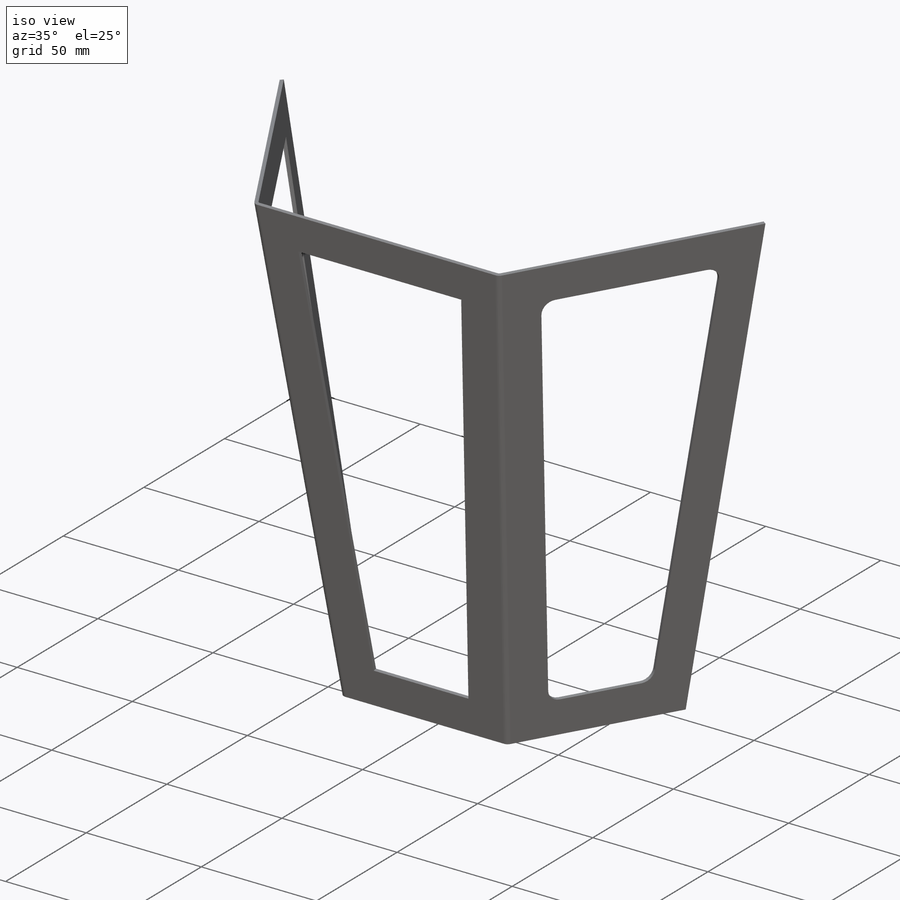
[diagram: iso view]
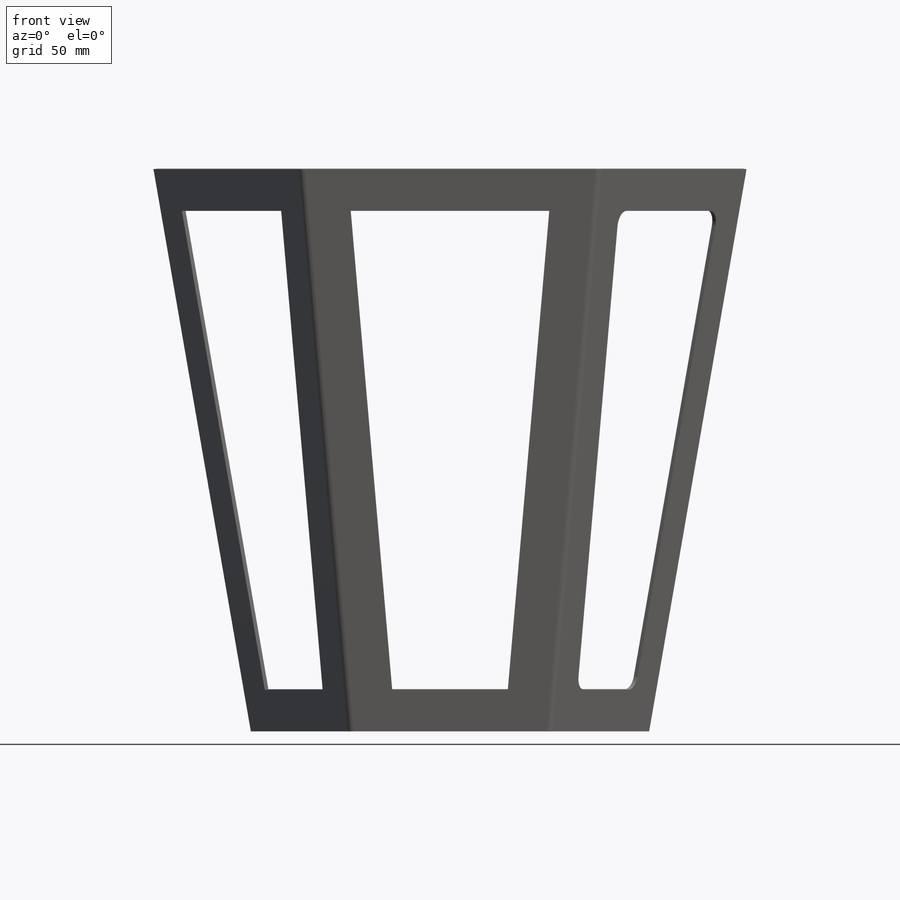
[diagram: front view]
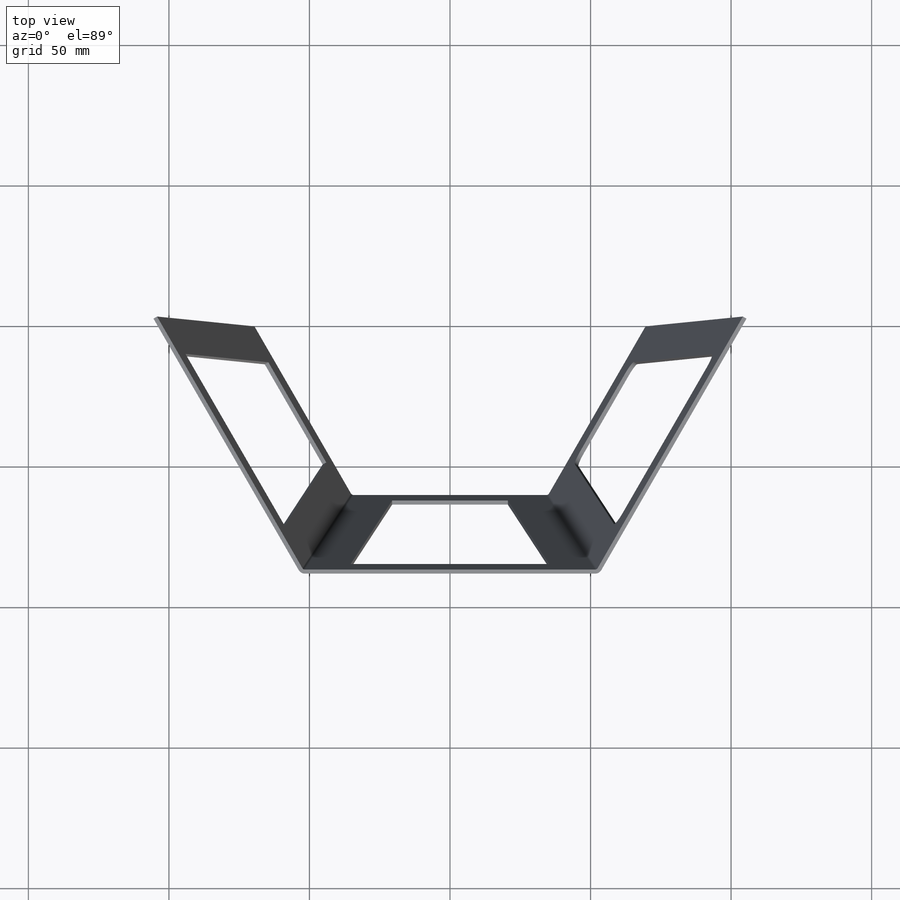
[diagram: top view]
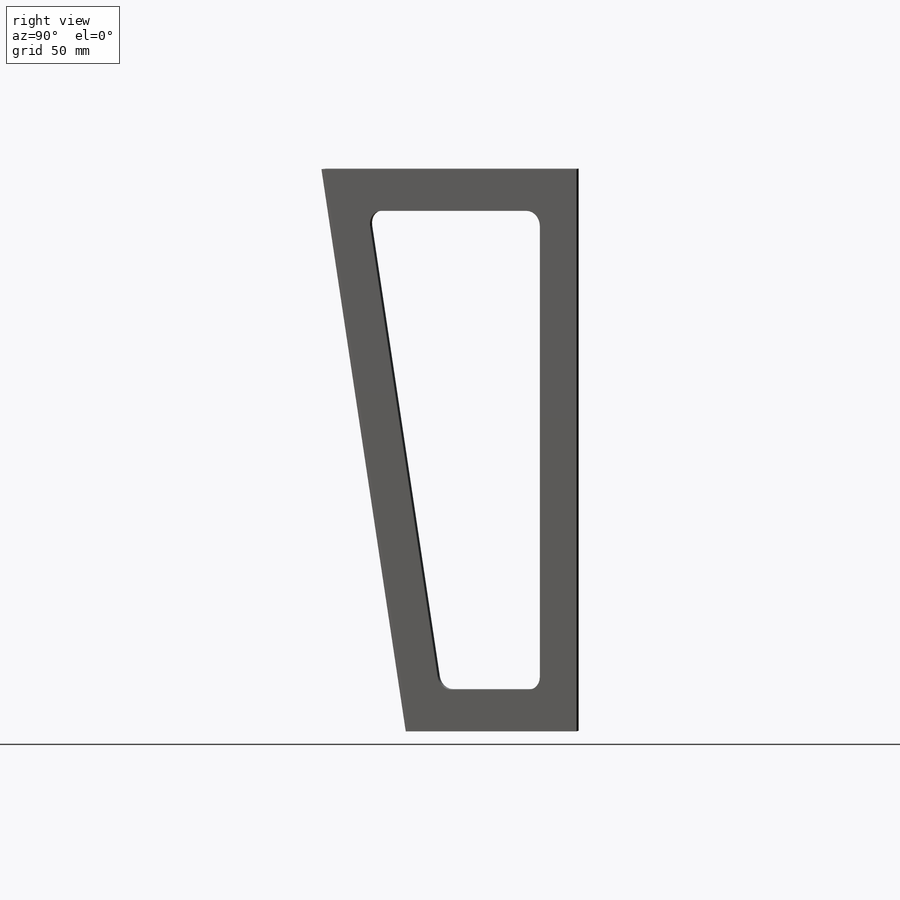
[diagram: right view]
SOLIDWORKS PART (.sldprt)
format: sldprt  version: not decoded by parser v0  size: 330,240 bytes
history: native  units: mm
features: sketch x15, plane x4, sheet_metal_op x4, cut_extrude x3, material x1 + 8 further entries (+10 scaffold rows collapsed)
feature tree (45):
  scaffold x10  (default folders/planes/origin — collapsed)
  material  "Material <sin especificar>"
  plane  "Alzado"
  plane  "Planta"
  plane  "Vista lateral"
  sketch  "Croquis1"  dims[c1.D3=1.0mm c1.D1=~87.454263mm c2.D1=~102.688442deg c3.D1=~2094.395102mm c3.D2=60.0mm c3.D3=~45.209859mm]
  plane  "Plano1"  Offset=200mm
  sketch  "Croquis2"  dims[c1.D3=1.0mm c1.D1=~2094.395102mm c1.D2=90.0mm c2.D1=1.0mm c2.D2=0.5 c2.D3=0.0deg c2.D6=~28.64789deg c3.D1=1000.0mm c3.D4=1000.0mm c3.D5=1.0 c3.D8=~0.042972deg c3.D9=~0.042972deg c3.Pliegue de forma libre2=0.0 c4.D1=1000.0mm c4.D4=1000.0mm c4.D5=2.0 c4.D8=~0.042972deg c4.D9=~0.042972deg c5.D1=0.0mm]
  sketch  "Croquis3"  dims[D2=5.0mm D1=15.0mm]
  cut_extrude  "Cortar-Extruir1"  [1 undecoded]
  sketch  "Croquis4"  dims[D1=15.0mm]
  cut_extrude  "Cortar-Extruir2"  [1 undecoded]
  sketch  "Croquis5"  dims[D1=15.0mm]
  cut_extrude  "Cortar-Extruir3"  [1 undecoded]
  sketch  "Líneas de pliegue3"
  sketch  "Cuadro delimitador3"
  sheet_metal_op  "Chapa metálica2"
  "Chapa desplegada2"
  sketch  "Líneas de pliegue4"
  sketch  "Cuadro delimitador4"
  "Transformación de croquis2"
  sheet_metal_op  "Chapa metálica3"
  "Chapa desplegada2"
  sketch  "Líneas de pliegue4"
  sketch  "Cuadro delimitador4"
  "Transformación de croquis2"
  sheet_metal_op  "Chapa metálica4"
  "Chapa desplegada2"
  sketch  "Líneas de pliegue4"
  sketch  "Cuadro delimitador4"
  "Transformación de croquis2"
  sheet_metal_op  "Chapa metálica5"
  "Chapa desplegada2"
  sketch  "Líneas de pliegue4"
  sketch  "Cuadro delimitador4"
  "Transformación de croquis2"
decode coverage: 5 of 22 modeling features carry decoded parameters; 8 rows unclassified (native names shown)
note: ~ marks probable driven/reference dimensions
note: 3 parameter values undecoded
summary: no parameter record found for 3 features
note: suppression state not decoded; provenance and decode notes live in map.json
